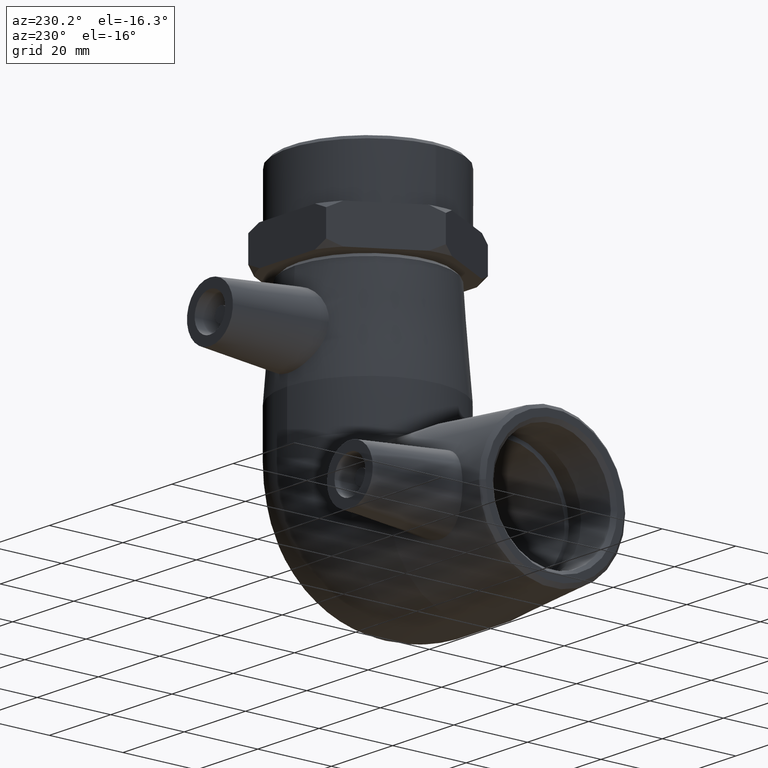
[diagram: clean part render]
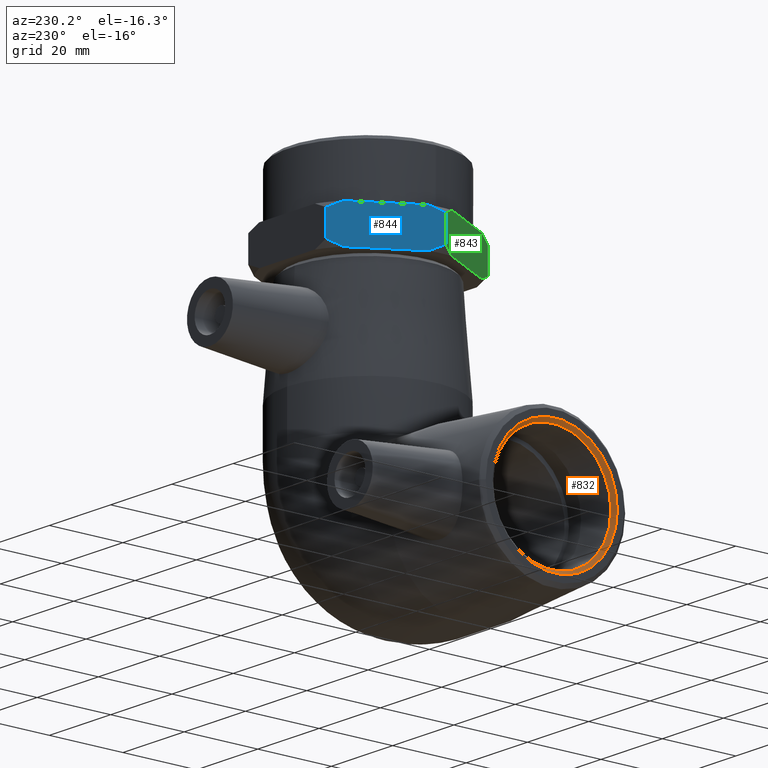
[diagram: same view with three faces highlighted in distinct colors, each labeled with its STEP entity id]
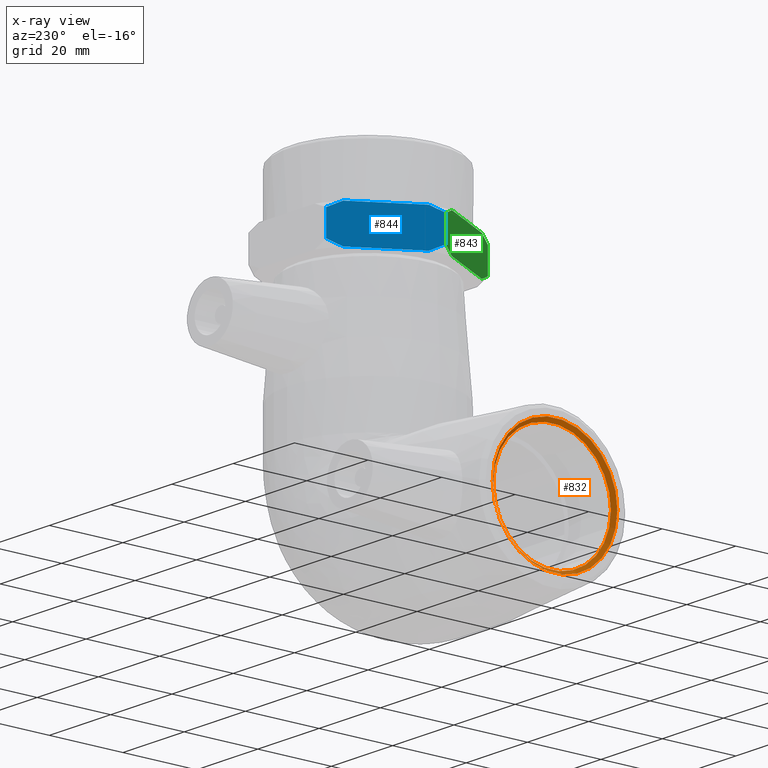
[diagram: x-ray of the same camera — body ghosted, the three highlighted faces saturated]
A machine part, auxiliary view with three faces highlighted in distinct colors.
The next image is the same camera in x-ray (body ghosted, the three faces saturated) — at least one of them is partly hidden behind the body in this view.
Their STEP definitions:

[orange] entity #832 — the highlighted conical surface has half-angle 45 deg.
#34=FACE_BOUND('',#231,.T.);
#165=FACE_OUTER_BOUND('',#230,.T.);
#230=EDGE_LOOP('',(#654));
#231=EDGE_LOOP('',(#655));
#331=CIRCLE('',#918,16.);
#332=CIRCLE('',#919,16.96);
#436=VERTEX_POINT('',#1433);
#437=VERTEX_POINT('',#1435);
#531=EDGE_CURVE('',#436,#436,#331,.T.);
#532=EDGE_CURVE('',#437,#437,#332,.T.);
#654=ORIENTED_EDGE('',*,*,#531,.T.);
#655=ORIENTED_EDGE('',*,*,#532,.T.);
#804=CONICAL_SURFACE('',#917,16.48,44.9999999999997);
#832=ADVANCED_FACE('',(#165,#34),#804,.F.);
#917=AXIS2_PLACEMENT_3D('',#1432,#1089,#1090);
#918=AXIS2_PLACEMENT_3D('',#1434,#1091,#1092);
#919=AXIS2_PLACEMENT_3D('',#1436,#1093,#1094);
#1089=DIRECTION('center_axis',(-1.,2.27504718160893E-18,0.));
#1090=DIRECTION('ref_axis',(-1.17065534587644E-18,-1.,0.));
#1091=DIRECTION('center_axis',(1.,-2.27504718160893E-18,0.));
#1092=DIRECTION('ref_axis',(0.,-1.,0.));
#1093=DIRECTION('center_axis',(-1.,2.27504718160893E-18,0.));
#1094=DIRECTION('ref_axis',(-2.27504718160893E-18,-1.,0.));
#1432=CARTESIAN_POINT('Origin',(-60.52,-1.0920226471723E-18,0.));
#1433=CARTESIAN_POINT('',(-60.04,16.,1.95943487863577E-15));
#1434=CARTESIAN_POINT('Origin',(-60.04,-2.18404529434459E-18,0.));
#1435=CARTESIAN_POINT('',(-61.,16.96,-2.07700097135391E-15));
#1436=CARTESIAN_POINT('Origin',(-61.,0.,0.));

[blue] entity #844 — the highlighted planar face has unit normal (-0.8659, 0.5001, 0).
#73=LINE('',#1403,#97);
#74=LINE('',#1405,#98);
#81=LINE('',#1422,#105);
#88=LINE('',#1542,#112);
#91=LINE('',#1546,#115);
#97=VECTOR('',#1056,9.08858618885244);
#98=VECTOR('',#1059,9.08858618885245);
#105=VECTOR('',#1078,18.1771723777048);
#112=VECTOR('',#1143,6.79999999999995);
#115=VECTOR('',#1148,6.79999999999995);
#130=PLANE('',#944);
#177=FACE_OUTER_BOUND('',#255,.T.);
#255=EDGE_LOOP('',(#692,#693,#694,#695,#696,#697,#698,#699,#700));
#374=(
BOUNDED_CURVE()
B_SPLINE_CURVE(2,(#1295,#1296,#1297),.UNSPECIFIED.,.F.,.F.)
B_SPLINE_CURVE_WITH_KNOTS((3,3),(0.,0.395274199215643),.UNSPECIFIED.)
CURVE()
GEOMETRIC_REPRESENTATION_ITEM()
RATIONAL_B_SPLINE_CURVE((1.,1.00270672658652,1.))
REPRESENTATION_ITEM('')
);
#379=(
BOUNDED_CURVE()
B_SPLINE_CURVE(2,(#1324,#1325,#1326),.UNSPECIFIED.,.F.,.F.)
B_SPLINE_CURVE_WITH_KNOTS((3,3),(0.,0.395274199215643),.UNSPECIFIED.)
CURVE()
GEOMETRIC_REPRESENTATION_ITEM()
RATIONAL_B_SPLINE_CURVE((1.,1.00270672658676,1.))
REPRESENTATION_ITEM('')
);
#388=(
BOUNDED_CURVE()
B_SPLINE_CURVE(2,(#1373,#1374,#1375),.UNSPECIFIED.,.F.,.F.)
B_SPLINE_CURVE_WITH_KNOTS((3,3),(0.,0.395274199215645),.UNSPECIFIED.)
CURVE()
GEOMETRIC_REPRESENTATION_ITEM()
RATIONAL_B_SPLINE_CURVE((1.,1.00270672658616,1.))
REPRESENTATION_ITEM('')
);
#389=(
BOUNDED_CURVE()
B_SPLINE_CURVE(2,(#1379,#1380,#1381),.UNSPECIFIED.,.F.,.F.)
B_SPLINE_CURVE_WITH_KNOTS((3,3),(0.,0.395274199215646),.UNSPECIFIED.)
CURVE()
GEOMETRIC_REPRESENTATION_ITEM()
RATIONAL_B_SPLINE_CURVE((1.,1.00270672658591,1.))
REPRESENTATION_ITEM('')
);
#399=VERTEX_POINT('',#1289);
#401=VERTEX_POINT('',#1294);
#408=VERTEX_POINT('',#1322);
#409=VERTEX_POINT('',#1323);
#421=VERTEX_POINT('',#1367);
#422=VERTEX_POINT('',#1371);
#423=VERTEX_POINT('',#1377);
#424=VERTEX_POINT('',#1378);
#430=VERTEX_POINT('',#1401);
#481=EDGE_CURVE('',#401,#399,#374,.T.);
#489=EDGE_CURVE('',#408,#409,#379,.T.);
#503=EDGE_CURVE('',#421,#422,#388,.T.);
#504=EDGE_CURVE('',#423,#424,#389,.T.);
#512=EDGE_CURVE('',#430,#409,#73,.T.);
#513=EDGE_CURVE('',#401,#430,#74,.T.);
#523=EDGE_CURVE('',#422,#423,#81,.T.);
#548=EDGE_CURVE('',#424,#408,#88,.T.);
#551=EDGE_CURVE('',#421,#399,#91,.T.);
#692=ORIENTED_EDGE('',*,*,#489,.T.);
#693=ORIENTED_EDGE('',*,*,#512,.F.);
#694=ORIENTED_EDGE('',*,*,#513,.F.);
#695=ORIENTED_EDGE('',*,*,#481,.T.);
#696=ORIENTED_EDGE('',*,*,#551,.F.);
#697=ORIENTED_EDGE('',*,*,#503,.T.);
#698=ORIENTED_EDGE('',*,*,#523,.T.);
#699=ORIENTED_EDGE('',*,*,#504,.T.);
#700=ORIENTED_EDGE('',*,*,#548,.T.);
#844=ADVANCED_FACE('',(#177),#130,.T.);
#944=AXIS2_PLACEMENT_3D('',#1545,#1146,#1147);
#1056=DIRECTION('',(-0.500143132824094,-0.865942750237509,1.27439113170042E-16));
#1059=DIRECTION('',(-0.500143132824094,-0.865942750237509,1.27439113170042E-16));
#1078=DIRECTION('',(-0.500143132824094,-0.865942750237509,1.27439113170042E-16));
#1143=DIRECTION('',(2.54787510534094E-16,0.,1.));
#1146=DIRECTION('center_axis',(-0.865942750237509,0.500143132824094,2.20631397598061E-16));
#1147=DIRECTION('ref_axis',(-0.500143132824094,-0.865942750237509,0.));
#1148=DIRECTION('',(2.54787510534094E-16,0.,1.));
#1289=CARTESIAN_POINT('',(-12.6980698601923,22.0020984801315,69.5));
#1294=CARTESIAN_POINT('',(-14.5051465357908,18.8733442422757,71.1));
#1295=CARTESIAN_POINT('Ctrl Pts',(-14.5051465357909,18.8733442422756,71.1));
#1296=CARTESIAN_POINT('Ctrl Pts',(-13.6309874842876,20.3868543627275,70.4326506000377));
#1297=CARTESIAN_POINT('Ctrl Pts',(-12.6980698601923,22.0020984801315,69.4999999999999));
#1322=CARTESIAN_POINT('',(-25.403411150457,0.00419816210978752,69.5));
#1323=CARTESIAN_POINT('',(-23.5963344746597,3.13295360198461,71.1));
#1324=CARTESIAN_POINT('Ctrl Pts',(-25.4034111502583,0.00419936412878788,
69.4999999999999));
#1325=CARTESIAN_POINT('Ctrl Pts',(-24.470493526163,1.6194434815328,70.4326506000377));
#1326=CARTESIAN_POINT('Ctrl Pts',(-23.5963344746597,3.13295360198464,71.1));
#1367=CARTESIAN_POINT('',(-12.6980698601923,22.0020984801314,62.7));
#1371=CARTESIAN_POINT('',(-14.5051465357909,18.8733442422756,61.1));
#1373=CARTESIAN_POINT('Ctrl Pts',(-12.6980698601923,22.0020984801315,62.7));
#1374=CARTESIAN_POINT('Ctrl Pts',(-13.6309874842876,20.3868543627275,61.7673493999623));
#1375=CARTESIAN_POINT('Ctrl Pts',(-14.5051465357909,18.8733442422756,61.1));
#1377=CARTESIAN_POINT('',(-23.5963344746597,3.13295360198465,61.1));
#1378=CARTESIAN_POINT('',(-25.403411150457,0.00419816210978752,62.7));
#1379=CARTESIAN_POINT('Ctrl Pts',(-23.5963344746597,3.13295360198468,61.1));
#1380=CARTESIAN_POINT('Ctrl Pts',(-24.470493526163,1.61944348153278,61.7673493999623));
#1381=CARTESIAN_POINT('Ctrl Pts',(-25.4034111502583,0.00419936412880392,
62.7));
#1401=CARTESIAN_POINT('',(-19.0507405052253,11.0031489221301,71.1));
#1403=CARTESIAN_POINT('',(-12.6980695130999,22.0020990810837,71.1));
#1405=CARTESIAN_POINT('',(-12.6980695130999,22.0020990810837,71.1));
#1422=CARTESIAN_POINT('',(-12.6980695130999,22.0020990810837,61.1));
#1542=CARTESIAN_POINT('',(-25.4034114973506,0.00419876317665158,61.1));
#1545=CARTESIAN_POINT('Origin',(-12.6980695130999,22.0020990810837,61.1));
#1546=CARTESIAN_POINT('',(-12.6980695130999,22.0020990810837,61.1));

[green] entity #843 — the highlighted planar face has unit normal (-0.8661, -0.4999, 0).
#72=LINE('',#1400,#96);
#80=LINE('',#1421,#104);
#88=LINE('',#1542,#112);
#89=LINE('',#1543,#113);
#90=LINE('',#1544,#114);
#96=VECTOR('',#1053,9.08858618885252);
#104=VECTOR('',#1077,18.1771723777049);
#112=VECTOR('',#1143,6.79999999999995);
#113=VECTOR('',#1144,6.79999999999995);
#114=VECTOR('',#1145,9.08858618885251);
#129=PLANE('',#943);
#176=FACE_OUTER_BOUND('',#254,.T.);
#254=EDGE_LOOP('',(#683,#684,#685,#686,#687,#688,#689,#690,#691));
#378=(
BOUNDED_CURVE()
B_SPLINE_CURVE(2,(#1318,#1319,#1320),.UNSPECIFIED.,.F.,.F.)
B_SPLINE_CURVE_WITH_KNOTS((3,3),(0.,0.39527419921564),.UNSPECIFIED.)
CURVE()
GEOMETRIC_REPRESENTATION_ITEM()
RATIONAL_B_SPLINE_CURVE((1.,1.00270672658655,1.))
REPRESENTATION_ITEM('')
);
#380=(
BOUNDED_CURVE()
B_SPLINE_CURVE(2,(#1328,#1329,#1330),.UNSPECIFIED.,.F.,.F.)
B_SPLINE_CURVE_WITH_KNOTS((3,3),(0.,0.39527419921564),.UNSPECIFIED.)
CURVE()
GEOMETRIC_REPRESENTATION_ITEM()
RATIONAL_B_SPLINE_CURVE((1.,1.00270672658651,1.))
REPRESENTATION_ITEM('')
);
#390=(
BOUNDED_CURVE()
B_SPLINE_CURVE(2,(#1384,#1385,#1386),.UNSPECIFIED.,.F.,.F.)
B_SPLINE_CURVE_WITH_KNOTS((3,3),(0.,0.395274199215642),.UNSPECIFIED.)
CURVE()
GEOMETRIC_REPRESENTATION_ITEM()
RATIONAL_B_SPLINE_CURVE((1.,1.00270672658617,1.))
REPRESENTATION_ITEM('')
);
#392=(
BOUNDED_CURVE()
B_SPLINE_CURVE(2,(#1394,#1395,#1396),.UNSPECIFIED.,.F.,.F.)
B_SPLINE_CURVE_WITH_KNOTS((3,3),(0.,0.395274199215643),.UNSPECIFIED.)
CURVE()
GEOMETRIC_REPRESENTATION_ITEM()
RATIONAL_B_SPLINE_CURVE((1.,1.00270672658554,1.))
REPRESENTATION_ITEM('')
);
#406=VERTEX_POINT('',#1312);
#407=VERTEX_POINT('',#1316);
#408=VERTEX_POINT('',#1322);
#410=VERTEX_POINT('',#1327);
#424=VERTEX_POINT('',#1378);
#425=VERTEX_POINT('',#1382);
#426=VERTEX_POINT('',#1388);
#428=VERTEX_POINT('',#1393);
#429=VERTEX_POINT('',#1399);
#488=EDGE_CURVE('',#406,#407,#378,.T.);
#490=EDGE_CURVE('',#410,#408,#380,.T.);
#506=EDGE_CURVE('',#424,#425,#390,.T.);
#508=EDGE_CURVE('',#428,#426,#392,.T.);
#510=EDGE_CURVE('',#410,#429,#72,.T.);
#522=EDGE_CURVE('',#425,#428,#80,.T.);
#548=EDGE_CURVE('',#424,#408,#88,.T.);
#549=EDGE_CURVE('',#426,#406,#89,.T.);
#550=EDGE_CURVE('',#429,#407,#90,.T.);
#683=ORIENTED_EDGE('',*,*,#490,.T.);
#684=ORIENTED_EDGE('',*,*,#548,.F.);
#685=ORIENTED_EDGE('',*,*,#506,.T.);
#686=ORIENTED_EDGE('',*,*,#522,.T.);
#687=ORIENTED_EDGE('',*,*,#508,.T.);
#688=ORIENTED_EDGE('',*,*,#549,.T.);
#689=ORIENTED_EDGE('',*,*,#488,.T.);
#690=ORIENTED_EDGE('',*,*,#550,.F.);
#691=ORIENTED_EDGE('',*,*,#510,.F.);
#843=ADVANCED_FACE('',(#176),#129,.T.);
#943=AXIS2_PLACEMENT_3D('',#1541,#1141,#1142);
#1053=DIRECTION('',(0.499856853516597,-0.866108033672756,-1.27366167689694E-16));
#1077=DIRECTION('',(0.499856853516597,-0.866108033672756,-1.27366167689694E-16));
#1141=DIRECTION('center_axis',(-0.866108033672756,-0.499856853516597,2.2067350975306E-16));
#1142=DIRECTION('ref_axis',(0.499856853516597,-0.866108033672756,0.));
#1143=DIRECTION('',(2.54787510534094E-16,0.,1.));
#1144=DIRECTION('',(2.54787510534094E-16,0.,1.));
#1145=DIRECTION('',(0.499856853516597,-0.866108033672756,-1.27366167689694E-16));
#1312=CARTESIAN_POINT('',(-12.7053423311444,-21.9978997168402,69.5));
#1316=CARTESIAN_POINT('',(-14.5113846455265,-18.8685482902576,71.1));
#1318=CARTESIAN_POINT('Ctrl Pts',(-12.7053423311444,-21.9978997168402,69.4999999999999));
#1319=CARTESIAN_POINT('Ctrl Pts',(-13.637725958082,-20.3823472960334,70.4326506000377));
#1320=CARTESIAN_POINT('Ctrl Pts',(-14.5113846455265,-18.8685482902576,71.1));
#1322=CARTESIAN_POINT('',(-25.403411150457,0.00419816210978752,69.5));
#1327=CARTESIAN_POINT('',(-23.5973688360749,-3.12515326447277,71.1));
#1328=CARTESIAN_POINT('Ctrl Pts',(-23.5973688360749,-3.12515326447279,71.1));
#1329=CARTESIAN_POINT('Ctrl Pts',(-24.4710275235194,-1.61135425869699,70.4326506000377));
#1330=CARTESIAN_POINT('Ctrl Pts',(-25.403411150457,0.00419816210980212,
69.4999999999999));
#1378=CARTESIAN_POINT('',(-25.403411150457,0.00419816210978752,62.7));
#1382=CARTESIAN_POINT('',(-23.5973688360749,-3.1251532644728,61.1));
#1384=CARTESIAN_POINT('Ctrl Pts',(-25.403411150457,0.00419816210979754,
62.7));
#1385=CARTESIAN_POINT('Ctrl Pts',(-24.4710275235194,-1.61135425869698,61.7673493999623));
#1386=CARTESIAN_POINT('Ctrl Pts',(-23.5973688360749,-3.12515326447282,61.1));
#1388=CARTESIAN_POINT('',(-12.7053423311444,-21.9978997168402,62.7));
#1393=CARTESIAN_POINT('',(-14.5113846455265,-18.8685482902576,61.1));
#1394=CARTESIAN_POINT('Ctrl Pts',(-14.5113846455265,-18.8685482902576,61.1));
#1395=CARTESIAN_POINT('Ctrl Pts',(-13.637725958082,-20.3823472960334,61.7673493999623));
#1396=CARTESIAN_POINT('Ctrl Pts',(-12.7053423311444,-21.9978997168402,62.7));
#1399=CARTESIAN_POINT('',(-19.0543767408007,-10.9968507773652,71.1));
#1400=CARTESIAN_POINT('',(-25.4034114973506,0.00419876317665158,71.1));
#1421=CARTESIAN_POINT('',(-25.4034114973506,0.00419876317665158,61.1));
#1541=CARTESIAN_POINT('Origin',(-25.4034114973506,0.00419876317665158,61.1));
#1542=CARTESIAN_POINT('',(-25.4034114973506,0.00419876317665158,61.1));
#1543=CARTESIAN_POINT('',(-12.7053419842508,-21.997900317907,61.1));
#1544=CARTESIAN_POINT('',(-25.4034114973506,0.00419876317665158,71.1));